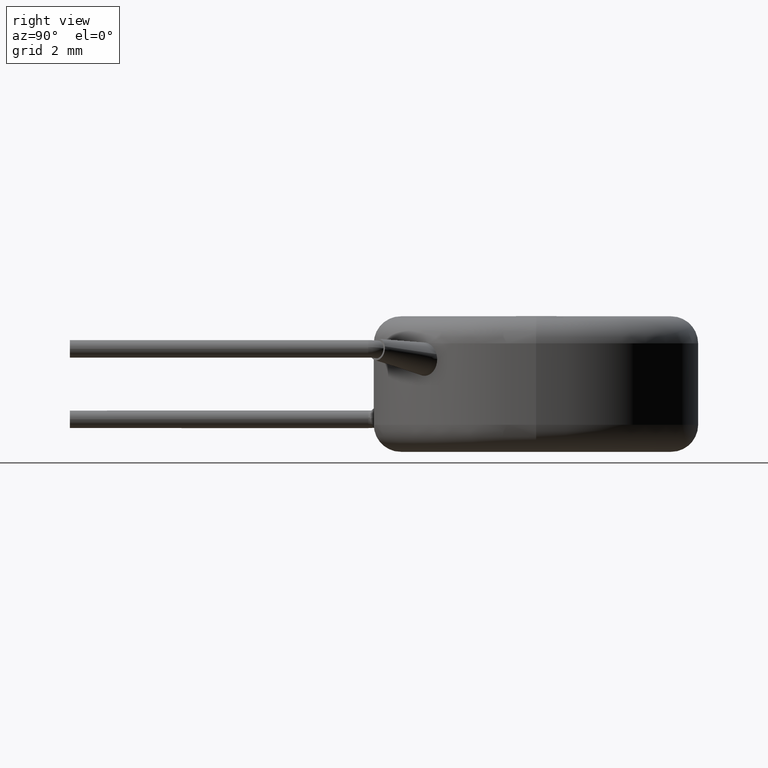
[diagram: clean part render]
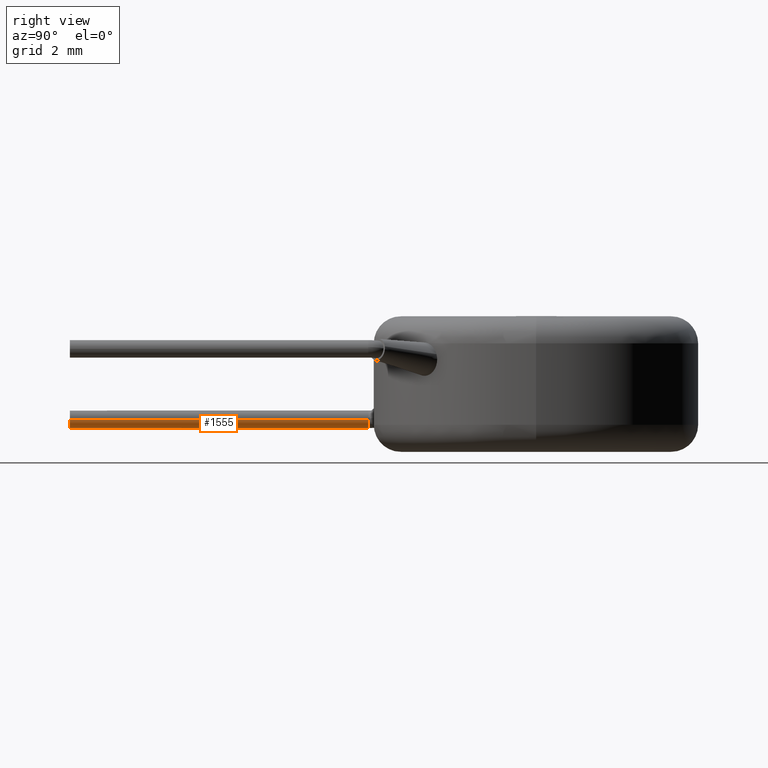
[diagram: same view with one face highlighted and labeled with its STEP entity id]
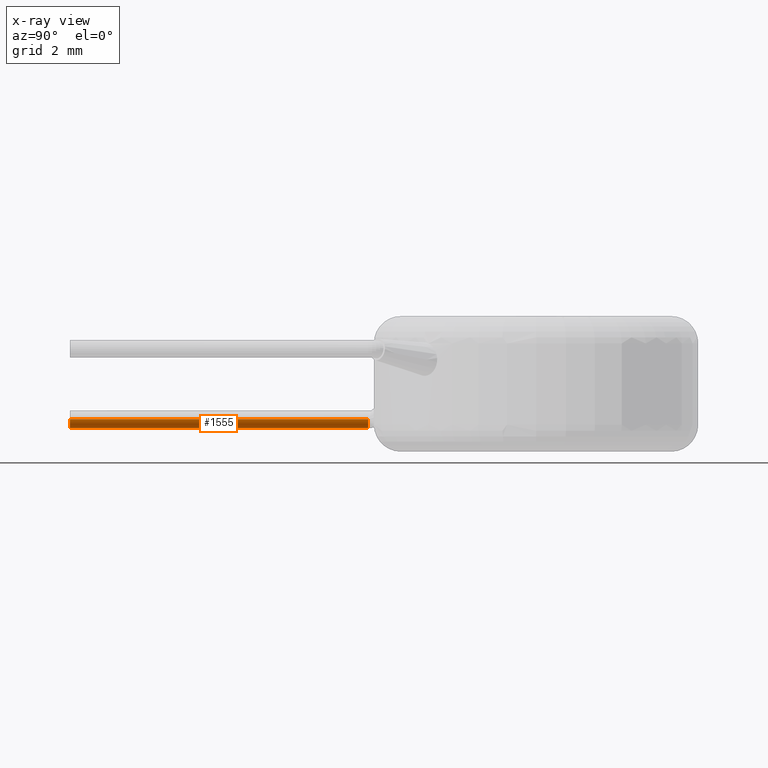
[diagram: x-ray of the same camera — body ghosted, the highlighted face saturated]
A machine part, right view. The second image highlights one B-rep face of the part: STEP entity #1555.
The next image is the same camera in x-ray: the body ghosted, the highlighted face saturated — about 0% of this face is hidden behind the body in this view.
In plain terms, the highlighted cylindrical surface (edge-blend (fillet) strip) has radius 0.325 mm, axis along (-0, -1, 0).
Its self-contained STEP definition (entity closure, byte-faithful):
#95 = VECTOR ( 'NONE', #916, 1000.000000000000000 ) ;
#302 = ORIENTED_EDGE ( 'NONE', *, *, #2282, .F. ) ;
#322 = CARTESIAN_POINT ( 'NONE',  ( -6.438305161694447800, -6.200397864563762500, 1.199999999999979300 ) ) ;
#375 = VECTOR ( 'NONE', #3450, 1000.000000000000000 ) ;
#406 = CARTESIAN_POINT ( 'NONE',  ( -6.113305161694447600, -6.200397864563762500, 1.199999999999979300 ) ) ;
#423 = DIRECTION ( 'NONE',  ( 0.9983794727490114000, 0.0000000000000000000, 0.05690719105179881100 ) ) ;
#448 = CIRCLE ( 'NONE', #2947, 0.3250000000000002300 ) ;
#453 = CARTESIAN_POINT ( 'NONE',  ( -6.113305161694448500, -17.20039786456376500, 1.199999999999979300 ) ) ;
#466 = DIRECTION ( 'NONE',  ( 0.9983794727490114000, 0.0000000000000000000, 0.05690719105179881100 ) ) ;
#498 = CARTESIAN_POINT ( 'NONE',  ( -6.113305161694447600, -6.200397864563762500, 1.199999999999979300 ) ) ;
#539 = AXIS2_PLACEMENT_3D ( 'NONE', #406, #2821, #542 ) ;
#542 = DIRECTION ( 'NONE',  ( 1.000000000000000000, 0.0000000000000000000, 0.0000000000000000000 ) ) ;
#547 = VERTEX_POINT ( 'NONE', #2611 ) ;
#767 = ORIENTED_EDGE ( 'NONE', *, *, #3675, .F. ) ;
#916 = DIRECTION ( 'NONE',  ( -7.885106708985486600E-017, -1.000000000000000000, 0.0000000000000000000 ) ) ;
#971 = VERTEX_POINT ( 'NONE', #1965 ) ;
#1246 = ORIENTED_EDGE ( 'NONE', *, *, #1330, .T. ) ;
#1330 = EDGE_CURVE ( 'NONE', #3559, #1476, #2293, .T. ) ;
#1343 = CARTESIAN_POINT ( 'NONE',  ( -5.788305161694447400, -17.20039786456376500, 1.199999999999979300 ) ) ;
#1352 = DIRECTION ( 'NONE',  ( 4.666406150377611100E-016, 1.000000000000000000, 8.326672684688674100E-017 ) ) ;
#1476 = VERTEX_POINT ( 'NONE', #1343 ) ;
#1555 = ADVANCED_FACE ( 'NONE', ( #1972 ), #2234, .T. ) ;
#1685 = CIRCLE ( 'NONE', #3525, 0.3250000000000002300 ) ;
#1795 = LINE ( 'NONE', #322, #95 ) ;
#1886 = CARTESIAN_POINT ( 'NONE',  ( -6.113305161694447600, -6.200397864563762500, 1.199999999999979300 ) ) ;
#1965 = CARTESIAN_POINT ( 'NONE',  ( -6.431197030102558700, -6.200397864563762500, 1.132399999999978800 ) ) ;
#1972 = FACE_OUTER_BOUND ( 'NONE', #2146, .T. ) ;
#2146 = EDGE_LOOP ( 'NONE', ( #767, #3025, #302, #1246, #3029 ) ) ;
#2214 = EDGE_CURVE ( 'NONE', #1476, #3035, #1685, .T. ) ;
#2234 = CYLINDRICAL_SURFACE ( 'NONE', #539, 0.3250000000000006200 ) ;
#2282 = EDGE_CURVE ( 'NONE', #3559, #971, #448, .T. ) ;
#2293 = LINE ( 'NONE', #3363, #375 ) ;
#2551 = CARTESIAN_POINT ( 'NONE',  ( -5.788305161694446500, -6.200397864563762500, 1.199999999999979300 ) ) ;
#2611 = CARTESIAN_POINT ( 'NONE',  ( -6.438305161694447800, -6.200397864563762500, 1.199999999999979300 ) ) ;
#2738 = CARTESIAN_POINT ( 'NONE',  ( -6.438305161694448700, -17.20039786456376500, 1.199999999999979300 ) ) ;
#2783 = CIRCLE ( 'NONE', #3289, 0.3250000000000003400 ) ;
#2821 = DIRECTION ( 'NONE',  ( -7.885106708985486600E-017, -1.000000000000000000, 0.0000000000000000000 ) ) ;
#2869 = DIRECTION ( 'NONE',  ( 0.9983794727490110700, 0.0000000000000000000, 0.05690719105180612500 ) ) ;
#2880 = EDGE_CURVE ( 'NONE', #971, #547, #2783, .T. ) ;
#2947 = AXIS2_PLACEMENT_3D ( 'NONE', #1886, #1352, #423 ) ;
#3025 = ORIENTED_EDGE ( 'NONE', *, *, #2880, .F. ) ;
#3029 = ORIENTED_EDGE ( 'NONE', *, *, #2214, .T. ) ;
#3035 = VERTEX_POINT ( 'NONE', #2738 ) ;
#3057 = DIRECTION ( 'NONE',  ( 4.666406150377611100E-016, 1.000000000000000000, 8.326672684688674100E-017 ) ) ;
#3289 = AXIS2_PLACEMENT_3D ( 'NONE', #498, #3442, #2869 ) ;
#3363 = CARTESIAN_POINT ( 'NONE',  ( -5.788305161694446500, -6.200397864563762500, 1.199999999999979300 ) ) ;
#3442 = DIRECTION ( 'NONE',  ( 4.666406150377611100E-016, 1.000000000000000000, 8.326672684688674100E-017 ) ) ;
#3450 = DIRECTION ( 'NONE',  ( -7.885106708985486600E-017, -1.000000000000000000, 0.0000000000000000000 ) ) ;
#3525 = AXIS2_PLACEMENT_3D ( 'NONE', #453, #3057, #466 ) ;
#3559 = VERTEX_POINT ( 'NONE', #2551 ) ;
#3675 = EDGE_CURVE ( 'NONE', #547, #3035, #1795, .T. ) ;